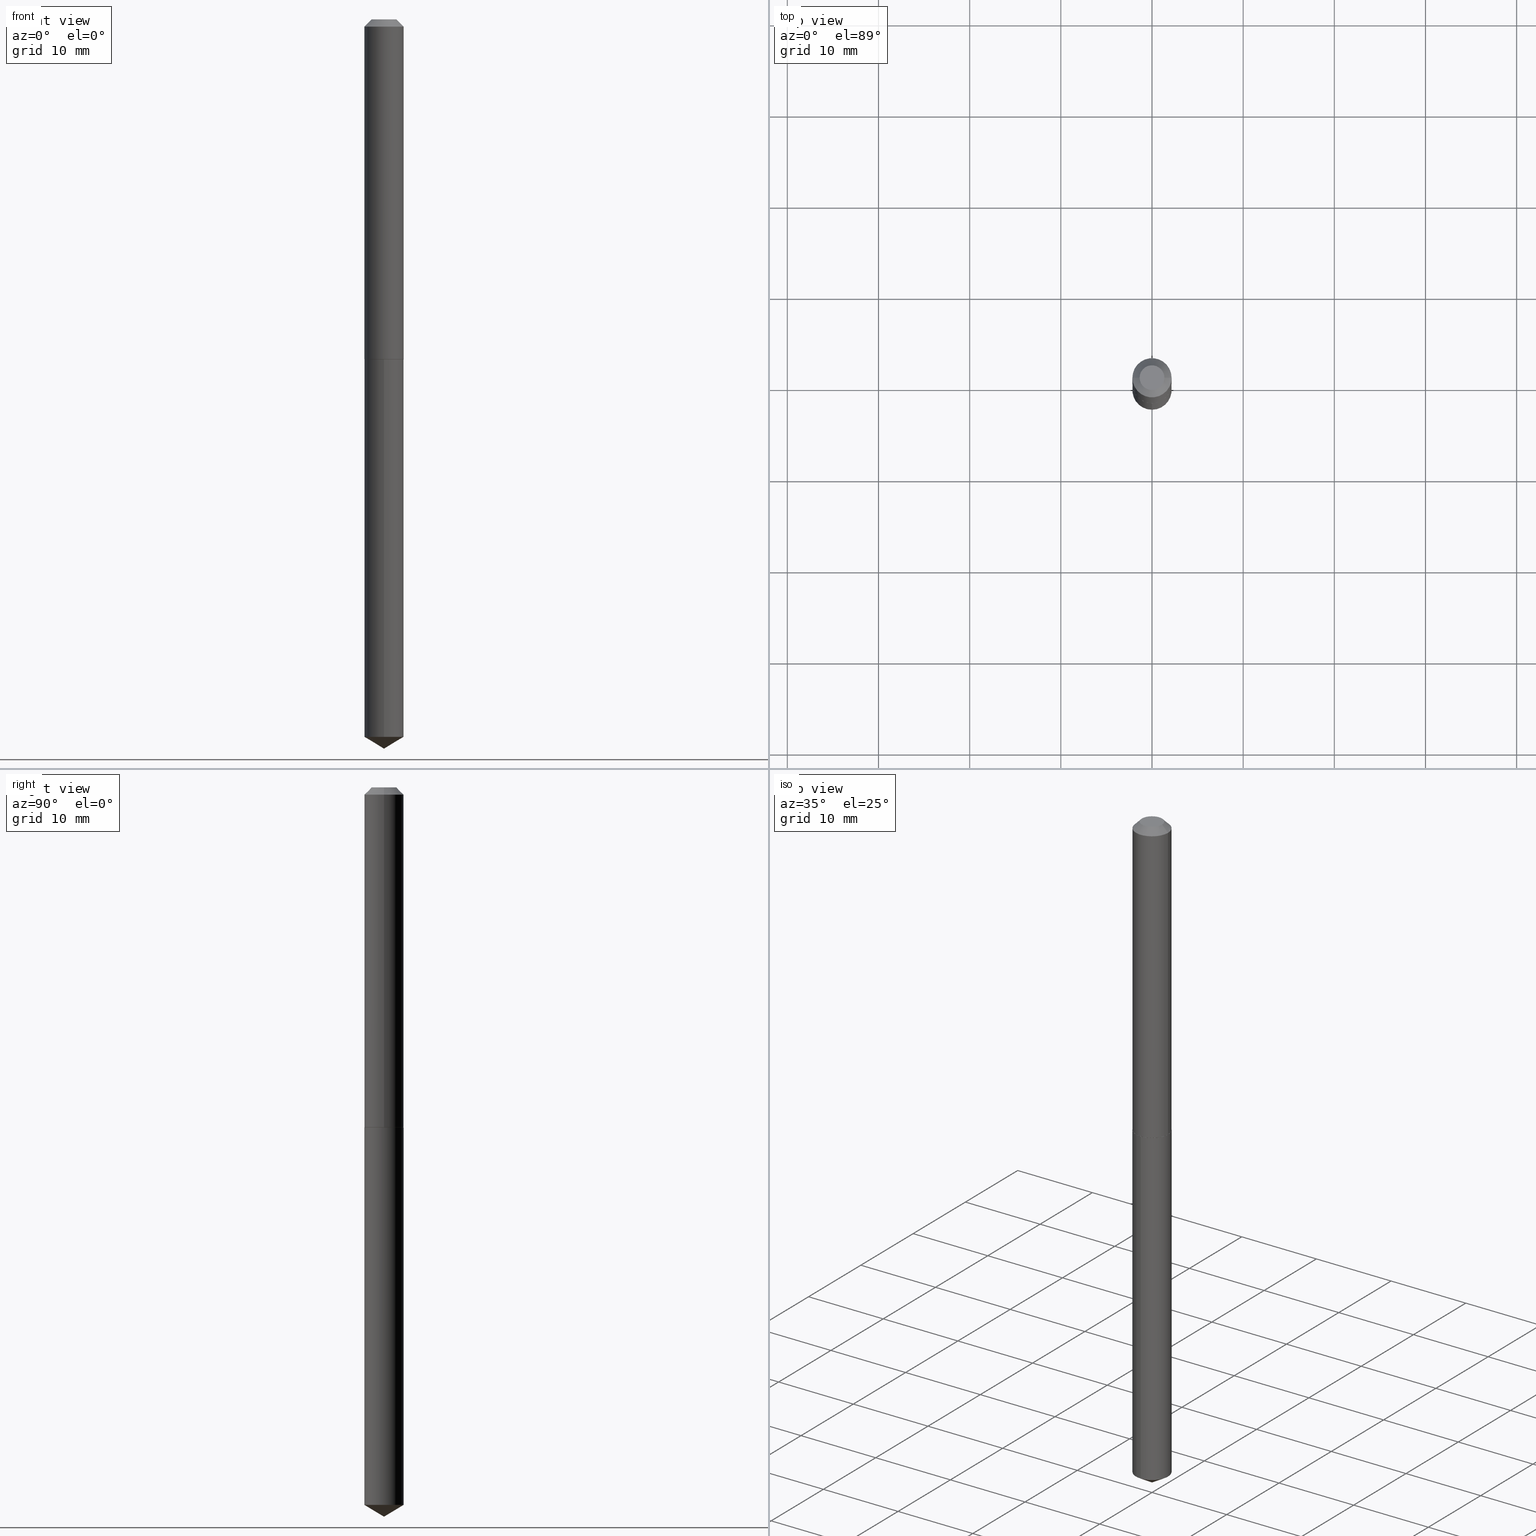
[diagram: canonical four-view strip — front | top / right | iso, engineering-drawing reading convention]
A machine part, canonical four-view strip (front | top / right | iso — engineering-drawing reading convention). The complete STEP part file that produces these views, byte-faithful:
ISO-10303-21;
HEADER;
FILE_DESCRIPTION (( 'STEP AP203' ),
    '1' );
FILE_NAME ('61078.STEP',
    '2024-04-23T03:21:39',
    ( '' ),
    ( '' ),
    'SwSTEP 2.0',
    'SolidWorks 2023',
    '' );
FILE_SCHEMA (( 'CONFIG_CONTROL_DESIGN' ));
ENDSEC;

DATA;
#1 = ORIENTED_EDGE ( 'NONE', *, *, #15, .F. ) ;
#2 = PLANE ( 'NONE',  #169 ) ;
#3 = AXIS2_PLACEMENT_3D ( 'NONE', #378, #253, #167 ) ;
#4 = DATE_AND_TIME ( #67, #155 ) ;
#5 = CC_DESIGN_PERSON_AND_ORGANIZATION_ASSIGNMENT ( #192, #147, ( #36 ) ) ;
#6 = APPROVAL_STATUS ( 'not_yet_approved' ) ;
#7 = ORIENTED_EDGE ( 'NONE', *, *, #105, .T. ) ;
#8 = VERTEX_POINT ( 'NONE', #281 ) ;
#9 = PERSON_AND_ORGANIZATION ( #268, #138 ) ;
#10 = AXIS2_PLACEMENT_3D ( 'NONE', #170, #257, #290 ) ;
#11 = ORIENTED_EDGE ( 'NONE', *, *, #216, .F. ) ;
#12 = COORDINATED_UNIVERSAL_TIME_OFFSET ( 5, 0, .BEHIND. ) ;
#13 = VERTEX_POINT ( 'NONE', #332 ) ;
#14 = EDGE_LOOP ( 'NONE', ( #115, #7, #99 ) ) ;
#15 = EDGE_CURVE ( 'NONE', #294, #35, #350, .T. ) ;
#16 = CIRCLE ( 'NONE', #326, 0.05340000000000000996 ) ;
#17 = CC_DESIGN_PERSON_AND_ORGANIZATION_ASSIGNMENT ( #371, #209, ( #104 ) ) ;
#18 = FACE_OUTER_BOUND ( 'NONE', #273, .T. ) ;
#19 = DIRECTION ( 'NONE',  ( -2.445439580246594342E-29, 3.491523192050575097E-15, 1.000000000000000000 ) ) ;
#20 = CARTESIAN_POINT ( 'NONE',  ( 6.014744258210007567E-16, 0.08464999999998920610, -3.098737148599317592 ) ) ;
#21 = EDGE_CURVE ( 'NONE', #8, #193, #362, .T. ) ;
#22 = CARTESIAN_POINT ( 'NONE',  ( 7.702156501944673603E-29, -1.099690144568249150E-14, -3.149600000000000399 ) ) ;
#23 = LINE ( 'NONE', #197, #149 ) ;
#24 = CYLINDRICAL_SURFACE ( 'NONE', #164, 0.08465000000000011404 ) ;
#25 = ADVANCED_FACE ( 'NONE', ( #219 ), #118, .T. ) ;
#26 = ORIENTED_EDGE ( 'NONE', *, *, #255, .F. ) ;
#27 = VERTEX_POINT ( 'NONE', #33 ) ;
#28 = VECTOR ( 'NONE', #289, 39.37007874015748143 ) ;
#29 = CARTESIAN_POINT ( 'NONE',  ( 3.589948207479781295E-29, -5.125494605421738793E-15, -1.468000000000000194 ) ) ;
#30 = FACE_OUTER_BOUND ( 'NONE', #221, .T. ) ;
#31 = CALENDAR_DATE ( 2024, 22, 4 ) ;
#32 = ORIENTED_EDGE ( 'NONE', *, *, #255, .T. ) ;
#33 = CARTESIAN_POINT ( 'NONE',  ( -0.08415000000000039115, -4.526669406774923587E-15, -1.468500000000000361 ) ) ;
#34 = EDGE_CURVE ( 'NONE', #81, #27, #235, .T. ) ;
#35 = VERTEX_POINT ( 'NONE', #152 ) ;
#36 = SECURITY_CLASSIFICATION ( '', '', #335 ) ;
#37 = EDGE_CURVE ( 'NONE', #141, #35, #337, .T. ) ;
#38 = CARTESIAN_POINT ( 'NONE',  ( 7.642090019328602662E-31, -1.091087918388490267E-16, -0.03125000000000020817 ) ) ;
#39 = APPROVAL_DATE_TIME ( #156, #198 ) ;
#40 = ORIENTED_EDGE ( 'NONE', *, *, #265, .T. ) ;
#41 = ORIENTED_EDGE ( 'NONE', *, *, #288, .T. ) ;
#42 = DIRECTION ( 'NONE',  ( 1.000000000000000000, -6.982962677686266711E-15, 4.876167854615105113E-29 ) ) ;
#43 = VECTOR ( 'NONE', #179, 39.37007874015748854 ) ;
#44 = DIRECTION ( 'NONE',  ( -2.445439580246594342E-29, 3.491523192050575097E-15, 1.000000000000000000 ) ) ;
#45 = DIRECTION ( 'NONE',  ( -2.445439580246594342E-29, 3.491523192050574702E-15, 1.000000000000000000 ) ) ;
#46 = FACE_OUTER_BOUND ( 'NONE', #322, .T. ) ;
#47 = DIRECTION ( 'NONE',  ( -6.982962677686265922E-15, -1.000000000000000000, 3.227227399485248397E-15 ) ) ;
#48 = VECTOR ( 'NONE', #132, 39.37007874015748854 ) ;
#49 = CARTESIAN_POINT ( 'NONE',  ( 7.642090019328602662E-31, -1.091087918388490267E-16, -0.03125000000000020817 ) ) ;
#50 = LOCAL_TIME ( 23, 21, 39.00000000000000000, #159 ) ;
#51 = CARTESIAN_POINT ( 'NONE',  ( 3.591170941882873536E-29, -5.127240346091159508E-15, -1.468500000000000139 ) ) ;
#52 = ORIENTED_EDGE ( 'NONE', *, *, #105, .F. ) ;
#53 = CC_DESIGN_APPROVAL ( #214, ( #36 ) ) ;
#54 = CARTESIAN_POINT ( 'NONE',  ( 6.014744258210009539E-16, 0.08464999999999488212, -1.468500000000000361 ) ) ;
#55 = DIRECTION ( 'NONE',  ( -2.445468806185136877E-29, 3.491481338843145188E-15, 1.000000000000000000 ) ) ;
#56 = EDGE_LOOP ( 'NONE', ( #160, #339, #359, #266 ) ) ;
#57 = DIRECTION ( 'NONE',  ( 1.000000000000000000, -6.982962677686266711E-15, 0.000000000000000000 ) ) ;
#58 = COORDINATED_UNIVERSAL_TIME_OFFSET ( 5, 0, .BEHIND. ) ;
#59 = ORIENTED_EDGE ( 'NONE', *, *, #62, .F. ) ;
#60 = CIRCLE ( 'NONE', #206, 0.08465000000000018343 ) ;
#61 = CARTESIAN_POINT ( 'NONE',  ( 0.08465000000000003078, -6.898499473502093829E-16, -0.03125000000000020817 ) ) ;
#62 = EDGE_CURVE ( 'NONE', #27, #81, #191, .T. ) ;
#63 = APPLICATION_PROTOCOL_DEFINITION ( 'international standard', 'config_control_design', 1994, #286 ) ;
#64 = ORIENTED_EDGE ( 'NONE', *, *, #285, .T. ) ;
#65 = ORIENTED_EDGE ( 'NONE', *, *, #88, .T. ) ;
#66 = AXIS2_PLACEMENT_3D ( 'NONE', #277, #303, #373 ) ;
#67 = CALENDAR_DATE ( 2024, 22, 4 ) ;
#68 = ORIENTED_EDGE ( 'NONE', *, *, #360, .F. ) ;
#69 = CC_DESIGN_DATE_AND_TIME_ASSIGNMENT ( #98, #340, ( #111 ) ) ;
#70 = DIRECTION ( 'NONE',  ( -6.982962677686265922E-15, -1.000000000000000000, 3.227227399485248397E-15 ) ) ;
#71 = CARTESIAN_POINT ( 'NONE',  ( 7.577817390255991065E-29, -1.081925115896807273E-14, -3.098737148599316704 ) ) ;
#72 = PRODUCT ( '61078', '61078', '', ( #153 ) ) ;
#73 = CC_DESIGN_SECURITY_CLASSIFICATION ( #36, ( #104 ) ) ;
#74 = AXIS2_PLACEMENT_3D ( 'NONE', #71, #194, #229 ) ;
#75 = CARTESIAN_POINT ( 'NONE',  ( 6.014744258209607220E-16, 0.08464999999999488212, -1.468500000000000361 ) ) ;
#76 = DIRECTION ( 'NONE',  ( -2.445439580246594342E-29, 3.491523192050575097E-15, 1.000000000000000000 ) ) ;
#77 = DIRECTION ( 'NONE',  ( -6.982962677686265922E-15, -1.000000000000000000, 3.227227399485248397E-15 ) ) ;
#78 = DIRECTION ( 'NONE',  ( -0.7071067811865453523, 2.468850131082234184E-15, -0.7071067811865496822 ) ) ;
#79 = CIRCLE ( 'NONE', #354, 0.08465000000000018343 ) ;
#80 = ADVANCED_FACE ( 'NONE', ( #247 ), #256, .T. ) ;
#81 = VERTEX_POINT ( 'NONE', #313 ) ;
#82 = EDGE_CURVE ( 'NONE', #180, #141, #185, .T. ) ;
#83 = DIRECTION ( 'NONE',  ( -1.000000000000000000, 6.982962677686266711E-15, 0.000000000000000000 ) ) ;
#84 = ORIENTED_EDGE ( 'NONE', *, *, #288, .F. ) ;
#85 = DIMENSIONAL_EXPONENTS ( 1.000000000000000000, 0.000000000000000000, 0.000000000000000000, 0.000000000000000000, 0.000000000000000000, 0.000000000000000000, 0.000000000000000000 ) ;
#86 = DIRECTION ( 'NONE',  ( 1.000000000000000000, -6.982962677686266711E-15, 4.876176775795935232E-29 ) ) ;
#87 = DIRECTION ( 'NONE',  ( -0.7071067811862817853, 7.493145998869393328E-15, 0.7071067811868130271 ) ) ;
#88 = EDGE_CURVE ( 'NONE', #90, #292, #345, .T. ) ;
#89 = DIRECTION ( 'NONE',  ( 1.000000000000000000, -6.982962677686266711E-15, 0.000000000000000000 ) ) ;
#90 = VERTEX_POINT ( 'NONE', #252 ) ;
#91 = CALENDAR_DATE ( 2024, 22, 4 ) ;
#92 = ORIENTED_EDGE ( 'NONE', *, *, #34, .F. ) ;
#93 = DIRECTION ( 'NONE',  ( 1.000000000000000000, -6.982962677686266711E-15, 0.000000000000000000 ) ) ;
#94 = DATE_AND_TIME ( #91, #226 ) ;
#95 = ORIENTED_EDGE ( 'NONE', *, *, #15, .T. ) ;
#96 = CALENDAR_DATE ( 2024, 22, 4 ) ;
#97 = DIRECTION ( 'NONE',  ( 0.7071067811865453523, -7.319954787623248157E-15, -0.7071067811865496822 ) ) ;
#98 = DATE_AND_TIME ( #96, #50 ) ;
#99 = ORIENTED_EDGE ( 'NONE', *, *, #21, .F. ) ;
#100 = AXIS2_PLACEMENT_3D ( 'NONE', #298, #270, #86 ) ;
#101 = DIRECTION ( 'NONE',  ( -6.982962677686265922E-15, -1.000000000000000000, 3.227227399485248397E-15 ) ) ;
#102 = PRODUCT_DEFINITION_SHAPE ( 'NONE', 'NONE',  #111 ) ;
#103 = DIRECTION ( 'NONE',  ( 1.000000000000000000, -6.982962677686266711E-15, 4.876167854615105113E-29 ) ) ;
#104 = PRODUCT_DEFINITION_FORMATION_WITH_SPECIFIED_SOURCE ( 'ANY', '', #72, .NOT_KNOWN. ) ;
#105 = EDGE_CURVE ( 'NONE', #154, #193, #23, .T. ) ;
#106 = DIRECTION ( 'NONE',  ( 1.000000000000000000, -6.982962677686265922E-15, 4.876176775795935793E-29 ) ) ;
#107 = AXIS2_PLACEMENT_3D ( 'NONE', #384, #317, #47 ) ;
#108 = CARTESIAN_POINT ( 'NONE',  ( 0.08465000000000018343, -5.716602396087882778E-15, -1.468000000000000194 ) ) ;
#109 = DIRECTION ( 'NONE',  ( 1.000000000000000000, -6.982962677686266711E-15, 0.000000000000000000 ) ) ;
#110 = FACE_OUTER_BOUND ( 'NONE', #275, .T. ) ;
#111 = PRODUCT_DEFINITION ( 'UNKNOWN', '', #104, #172 ) ;
#112 = LINE ( 'NONE', #231, #136 ) ;
#113 = CONICAL_SURFACE ( 'NONE', #318, 0.08465000000000018343, 0.7853981633970726906 ) ;
#114 = LENGTH_MEASURE_WITH_UNIT ( LENGTH_MEASURE( 0.02539999999999999897 ), #353 );
#115 = ORIENTED_EDGE ( 'NONE', *, *, #368, .F. ) ;
#116 = EDGE_CURVE ( 'NONE', #8, #90, #195, .T. ) ;
#117 = ADVANCED_FACE ( 'NONE', ( #199 ), #238, .T. ) ;
#118 = CONICAL_SURFACE ( 'NONE', #66, 0.08465000000000003078, 0.7853981633974452814 ) ;
#119 = FACE_OUTER_BOUND ( 'NONE', #249, .T. ) ;
#120 = EDGE_LOOP ( 'NONE', ( #52, #202, #215 ) ) ;
#121 = DATE_TIME_ROLE ( 'classification_date' ) ;
#122 = DIRECTION ( 'NONE',  ( -2.445468806185136597E-29, 3.491481338843145583E-15, 1.000000000000000000 ) ) ;
#123 = ORIENTED_EDGE ( 'NONE', *, *, #237, .F. ) ;
#124 = MANIFOLD_SOLID_BREP ( 'Body-Move/Copy2[2]', #325 ) ;
#125 = CONICAL_SURFACE ( 'NONE', #131, 0.08465000000000003078, 0.7853981633974452814 ) ;
#126 = APPROVAL_ROLE ( '' ) ;
#127 = DIRECTION ( 'NONE',  ( -2.445468806185136597E-29, 3.491481338843145583E-15, 1.000000000000000000 ) ) ;
#128 = CALENDAR_DATE ( 2024, 22, 4 ) ;
#129 = DIRECTION ( 'NONE',  ( -2.445439580246594342E-29, 3.491523192050575097E-15, 1.000000000000000000 ) ) ;
#130 = ORIENTED_EDGE ( 'NONE', *, *, #360, .T. ) ;
#131 = AXIS2_PLACEMENT_3D ( 'NONE', #49, #387, #83 ) ;
#132 = DIRECTION ( 'NONE',  ( 0.7071067811862817853, -2.468850131079474354E-15, 0.7071067811868130271 ) ) ;
#133 = PLANE ( 'NONE',  #158 ) ;
#134 = CARTESIAN_POINT ( 'NONE',  ( -5.839929314523221596E-48, 8.337871319499149181E-34, 2.388061258337353400E-19 ) ) ;
#135 = CLOSED_SHELL ( 'NONE', ( #245, #327, #117, #139, #297 ) ) ;
#136 = VECTOR ( 'NONE', #87, 39.37007874015748854 ) ;
#137 = FACE_OUTER_BOUND ( 'NONE', #377, .T. ) ;
#138 = ORGANIZATION ( 'UNSPECIFIED', 'UNSPECIFIED', '' ) ;
#139 = ADVANCED_FACE ( 'NONE', ( #46 ), #251, .T. ) ;
#140 = DIRECTION ( 'NONE',  ( -2.445468806185136597E-29, 3.491481338843145583E-15, 1.000000000000000000 ) ) ;
#141 = VERTEX_POINT ( 'NONE', #287 ) ;
#142 =( CONVERSION_BASED_UNIT ( 'INCH', #114 ) LENGTH_UNIT ( ) NAMED_UNIT ( #85 ) );
#143 =( GEOMETRIC_REPRESENTATION_CONTEXT ( 3 ) GLOBAL_UNCERTAINTY_ASSIGNED_CONTEXT ( ( #259 ) ) GLOBAL_UNIT_ASSIGNED_CONTEXT ( ( #142, #330, #389 ) ) REPRESENTATION_CONTEXT ( 'NONE', 'WORKASPACE' ) );
#144 = ORIENTED_EDGE ( 'NONE', *, *, #62, .T. ) ;
#145 = CC_DESIGN_APPROVAL ( #198, ( #111 ) ) ;
#146 = DIRECTION ( 'NONE',  ( 2.445439580246594342E-29, -3.491523192050574702E-15, -1.000000000000000000 ) ) ;
#147 = PERSON_AND_ORGANIZATION_ROLE ( 'classification_officer' ) ;
#148 = ORIENTED_EDGE ( 'NONE', *, *, #237, .T. ) ;
#149 = VECTOR ( 'NONE', #316, 39.37007874015748854 ) ;
#150 = EDGE_CURVE ( 'NONE', #193, #292, #225, .T. ) ;
#151 = APPROVAL_STATUS ( 'not_yet_approved' ) ;
#152 = CARTESIAN_POINT ( 'NONE',  ( 0.08465000000000003078, -7.002165825049917055E-16, -0.03125000000000020817 ) ) ;
#153 = MECHANICAL_CONTEXT ( 'NONE', #286, 'mechanical' ) ;
#154 = VERTEX_POINT ( 'NONE', #22 ) ;
#155 = LOCAL_TIME ( 23, 21, 39.00000000000000000, #58 ) ;
#156 = DATE_AND_TIME ( #31, #311 ) ;
#157 = DIRECTION ( 'NONE',  ( -2.445468806185136597E-29, 3.491481338843145583E-15, 1.000000000000000000 ) ) ;
#158 = AXIS2_PLACEMENT_3D ( 'NONE', #254, #380, #106 ) ;
#159 = COORDINATED_UNIVERSAL_TIME_OFFSET ( 5, 0, .BEHIND. ) ;
#160 = ORIENTED_EDGE ( 'NONE', *, *, #21, .T. ) ;
#161 = ORIENTED_EDGE ( 'NONE', *, *, #285, .F. ) ;
#162 = APPROVAL_PERSON_ORGANIZATION ( #220, #168, #126 ) ;
#163 = DIRECTION ( 'NONE',  ( -2.445468806185136597E-29, 3.491481338843145583E-15, 1.000000000000000000 ) ) ;
#164 = AXIS2_PLACEMENT_3D ( 'NONE', #203, #140, #232 ) ;
#165 = FACE_OUTER_BOUND ( 'NONE', #56, .T. ) ;
#166 = CARTESIAN_POINT ( 'NONE',  ( -0.05340000000000000996, 4.274446029078701372E-16, 2.388061258309370119E-19 ) ) ;
#167 = DIRECTION ( 'NONE',  ( -6.982962677686266711E-15, -1.000000000000000000, 3.468864327941613936E-15 ) ) ;
#168 = APPROVAL ( #6, 'UNSPECIFIED' ) ;
#169 = AXIS2_PLACEMENT_3D ( 'NONE', #51, #146, #355 ) ;
#170 = CARTESIAN_POINT ( 'NONE',  ( -2.919964657261610798E-48, 4.168935659749574591E-34, 1.194030629168676700E-19 ) ) ;
#171 = CARTESIAN_POINT ( 'NONE',  ( 3.589948207479781295E-29, -5.125494605421738793E-15, -1.468000000000000194 ) ) ;
#172 = DESIGN_CONTEXT ( 'detailed design', #386, 'design' ) ;
#173 = CARTESIAN_POINT ( 'NONE',  ( 3.589948207479781295E-29, -5.125494605421738793E-15, -1.468000000000000194 ) ) ;
#174 = ORIENTED_EDGE ( 'NONE', *, *, #310, .F. ) ;
#175 = EDGE_CURVE ( 'NONE', #344, #35, #223, .T. ) ;
#176 = DIRECTION ( 'NONE',  ( -2.445468806185136597E-29, 3.491481338843145583E-15, 1.000000000000000000 ) ) ;
#177 = VECTOR ( 'NONE', #230, 39.37007874015748143 ) ;
#178 = ADVANCED_BREP_SHAPE_REPRESENTATION ( '61078', ( #264, #124, #239 ), #143 ) ;
#179 = DIRECTION ( 'NONE',  ( -5.985567269335934180E-15, -0.8571673007021091140, 0.5150380749100591515 ) ) ;
#180 = VERTEX_POINT ( 'NONE', #166 ) ;
#181 = DIRECTION ( 'NONE',  ( -2.445468806185136597E-29, 3.491481338843145583E-15, 1.000000000000000000 ) ) ;
#182 = CC_DESIGN_PERSON_AND_ORGANIZATION_ASSIGNMENT ( #248, #343, ( #104 ) ) ;
#183 = SHAPE_DEFINITION_REPRESENTATION ( #102, #178 ) ;
#184 = DIRECTION ( 'NONE',  ( -6.982962677686265922E-15, -1.000000000000000000, 6.454454798970496795E-15 ) ) ;
#185 = CIRCLE ( 'NONE', #283, 0.05340000000000000996 ) ;
#186 = DIRECTION ( 'NONE',  ( 1.000000000000000000, 0.000000000000000000, 0.000000000000000000 ) ) ;
#187 = ORIENTED_EDGE ( 'NONE', *, *, #116, .T. ) ;
#188 = DIRECTION ( 'NONE',  ( 1.000000000000000000, -6.982962677686266711E-15, 0.000000000000000000 ) ) ;
#189 = AXIS2_PLACEMENT_3D ( 'NONE', #279, #129, #184 ) ;
#190 = CARTESIAN_POINT ( 'NONE',  ( 3.591170941882874097E-29, -5.127240346091160296E-15, -1.468500000000000361 ) ) ;
#191 = CIRCLE ( 'NONE', #309, 0.08415000000000039115 ) ;
#192 = PERSON_AND_ORGANIZATION ( #268, #138 ) ;
#193 = VERTEX_POINT ( 'NONE', #20 ) ;
#194 = DIRECTION ( 'NONE',  ( -2.445439580246594342E-29, 3.491523192050575097E-15, 1.000000000000000000 ) ) ;
#195 = LINE ( 'NONE', #379, #244 ) ;
#196 = CARTESIAN_POINT ( 'NONE',  ( -5.839929314523221596E-48, 8.337871319499149181E-34, 2.388061258337353400E-19 ) ) ;
#197 = CARTESIAN_POINT ( 'NONE',  ( 7.702243091211669364E-29, -1.099677852281227163E-14, -3.149600000000000399 ) ) ;
#198 = APPROVAL ( #151, 'UNSPECIFIED' ) ;
#199 = FACE_OUTER_BOUND ( 'NONE', #120, .T. ) ;
#200 = AXIS2_PLACEMENT_3D ( 'NONE', #348, #44, #70 ) ;
#201 = CARTESIAN_POINT ( 'NONE',  ( 0.08465000000000018343, -5.716602396087882778E-15, -1.468000000000000194 ) ) ;
#202 = ORIENTED_EDGE ( 'NONE', *, *, #368, .T. ) ;
#203 = CARTESIAN_POINT ( 'NONE',  ( 0.000000000000000000, 0.000000000000000000, 0.000000000000000000 ) ) ;
#204 = EDGE_LOOP ( 'NONE', ( #243, #306, #40, #95 ) ) ;
#205 = FACE_OUTER_BOUND ( 'NONE', #14, .T. ) ;
#206 = AXIS2_PLACEMENT_3D ( 'NONE', #173, #181, #328 ) ;
#207 = ORIENTED_EDGE ( 'NONE', *, *, #34, .T. ) ;
#208 = ADVANCED_FACE ( 'NONE', ( #137 ), #352, .F. ) ;
#209 = PERSON_AND_ORGANIZATION_ROLE ( 'design_supplier' ) ;
#210 = ORIENTED_EDGE ( 'NONE', *, *, #150, .F. ) ;
#211 = DATE_AND_TIME ( #128, #300 ) ;
#212 = DIRECTION ( 'NONE',  ( 1.000000000000000000, -6.982962677686266711E-15, 0.000000000000000000 ) ) ;
#213 = VECTOR ( 'NONE', #97, 39.37007874015748143 ) ;
#214 = APPROVAL ( #241, 'UNSPECIFIED' ) ;
#215 = ORIENTED_EDGE ( 'NONE', *, *, #224, .F. ) ;
#216 = EDGE_CURVE ( 'NONE', #292, #90, #319, .T. ) ;
#217 = COORDINATED_UNIVERSAL_TIME_OFFSET ( 5, 0, .BEHIND. ) ;
#218 = CC_DESIGN_APPROVAL ( #168, ( #104 ) ) ;
#219 = FACE_OUTER_BOUND ( 'NONE', #204, .T. ) ;
#220 = PERSON_AND_ORGANIZATION ( #268, #138 ) ;
#221 = EDGE_LOOP ( 'NONE', ( #367, #312, #68, #365 ) ) ;
#222 = VECTOR ( 'NONE', #55, 39.37007874015748143 ) ;
#223 = LINE ( 'NONE', #315, #177 ) ;
#224 = EDGE_CURVE ( 'NONE', #193, #8, #228, .T. ) ;
#225 = LINE ( 'NONE', #75, #28 ) ;
#226 = LOCAL_TIME ( 23, 21, 39.00000000000000000, #274 ) ;
#227 = LINE ( 'NONE', #382, #383 ) ;
#228 = CIRCLE ( 'NONE', #74, 0.08465000000000001690 ) ;
#229 = DIRECTION ( 'NONE',  ( -6.982962677686265922E-15, -1.000000000000000000, 6.454454798970496795E-15 ) ) ;
#230 = DIRECTION ( 'NONE',  ( -2.445468806185136877E-29, 3.491481338843145188E-15, 1.000000000000000000 ) ) ;
#231 = CARTESIAN_POINT ( 'NONE',  ( -0.08465000000000018343, -4.524020179600813175E-15, -1.468000000000000194 ) ) ;
#232 = DIRECTION ( 'NONE',  ( 1.000000000000000000, -6.982962677686266711E-15, 4.876176775795935232E-29 ) ) ;
#233 = ORIENTED_EDGE ( 'NONE', *, *, #37, .T. ) ;
#234 = CARTESIAN_POINT ( 'NONE',  ( -8.857494940837065754E-28, 1.264647030098697642E-13, 36.22047874015748192 ) ) ;
#235 = CIRCLE ( 'NONE', #342, 0.08415000000000039115 ) ;
#236 = DIRECTION ( 'NONE',  ( -2.445439580246594342E-29, 3.491523192050575097E-15, 1.000000000000000000 ) ) ;
#237 = EDGE_CURVE ( 'NONE', #81, #344, #314, .T. ) ;
#238 = CONICAL_SURFACE ( 'NONE', #3, 65.52281426576806211, 1.029744258676652091 ) ;
#239 = AXIS2_PLACEMENT_3D ( 'NONE', #369, #376, #186 ) ;
#240 = PERSON_AND_ORGANIZATION ( #268, #138 ) ;
#241 = APPROVAL_STATUS ( 'not_yet_approved' ) ;
#242 = CARTESIAN_POINT ( 'NONE',  ( 3.591170941882874097E-29, -5.127240346091160296E-15, -1.468500000000000361 ) ) ;
#243 = ORIENTED_EDGE ( 'NONE', *, *, #37, .F. ) ;
#244 = VECTOR ( 'NONE', #45, 39.37007874015748143 ) ;
#245 = ADVANCED_FACE ( 'NONE', ( #165 ), #284, .T. ) ;
#246 = APPROVAL_DATE_TIME ( #211, #168 ) ;
#247 = FACE_OUTER_BOUND ( 'NONE', #375, .T. ) ;
#248 = PERSON_AND_ORGANIZATION ( #268, #138 ) ;
#249 = EDGE_LOOP ( 'NONE', ( #207, #41, #267, #123 ) ) ;
#250 = CC_DESIGN_DATE_AND_TIME_ASSIGNMENT ( #4, #121, ( #36 ) ) ;
#251 = CYLINDRICAL_SURFACE ( 'NONE', #107, 0.08465000000000001690 ) ;
#252 = CARTESIAN_POINT ( 'NONE',  ( -5.911077906661066131E-16, -0.08465000000000513780, -1.468499999999999917 ) ) ;
#253 = DIRECTION ( 'NONE',  ( -2.445439580246594342E-29, 3.491523192050575097E-15, 1.000000000000000000 ) ) ;
#254 = CARTESIAN_POINT ( 'NONE',  ( 3.591170941882874097E-29, -5.127240346091160296E-15, -1.468500000000000361 ) ) ;
#255 = EDGE_CURVE ( 'NONE', #141, #180, #16, .T. ) ;
#256 = CONICAL_SURFACE ( 'NONE', #372, 0.08465000000000018343, 0.7853981633970726906 ) ;
#257 = DIRECTION ( 'NONE',  ( 2.438088387897960049E-29, -3.491481338843145188E-15, -1.000000000000000000 ) ) ;
#258 = APPROVAL_PERSON_ORGANIZATION ( #9, #198, #278 ) ;
#259 = UNCERTAINTY_MEASURE_WITH_UNIT (LENGTH_MEASURE( 1.000000000000000082E-05 ), #142, 'distance_accuracy_value', 'NONE');
#260 = LINE ( 'NONE', #320, #222 ) ;
#261 = ADVANCED_FACE ( 'NONE', ( #18 ), #133, .F. ) ;
#262 = LINE ( 'NONE', #358, #43 ) ;
#263 = APPROVAL_PERSON_ORGANIZATION ( #240, #214, #366 ) ;
#264 = MANIFOLD_SOLID_BREP ( 'Body-Move/Copy2[1]', #135 ) ;
#265 = EDGE_CURVE ( 'NONE', #180, #294, #227, .T. ) ;
#266 = ORIENTED_EDGE ( 'NONE', *, *, #116, .F. ) ;
#267 = ORIENTED_EDGE ( 'NONE', *, *, #349, .F. ) ;
#268 = PERSON ( 'UNSPECIFIED', 'UNSPECIFIED', 'UNSPECIFIED', ('UNSPECIFIED'), ('UNSPECIFIED'), ('UNSPECIFIED') ) ;
#269 = ADVANCED_FACE ( 'NONE', ( #110 ), #125, .T. ) ;
#270 = DIRECTION ( 'NONE',  ( -2.445468806185136597E-29, 3.491481338843145583E-15, 1.000000000000000000 ) ) ;
#271 = AXIS2_PLACEMENT_3D ( 'NONE', #234, #236, #385 ) ;
#272 = PERSON_AND_ORGANIZATION ( #268, #138 ) ;
#273 = EDGE_LOOP ( 'NONE', ( #92, #59 ) ) ;
#274 = COORDINATED_UNIVERSAL_TIME_OFFSET ( 5, 0, .BEHIND. ) ;
#275 = EDGE_LOOP ( 'NONE', ( #26, #233, #130, #356 ) ) ;
#276 = PERSON_AND_ORGANIZATION_ROLE ( 'design_owner' ) ;
#277 = CARTESIAN_POINT ( 'NONE',  ( 7.642090019328602662E-31, -1.091087918388490267E-16, -0.03125000000000020817 ) ) ;
#278 = APPROVAL_ROLE ( '' ) ;
#279 = CARTESIAN_POINT ( 'NONE',  ( 7.577817390255991065E-29, -1.081925115896807273E-14, -3.098737148599316704 ) ) ;
#280 = CC_DESIGN_PERSON_AND_ORGANIZATION_ASSIGNMENT ( #374, #276, ( #72 ) ) ;
#281 = CARTESIAN_POINT ( 'NONE',  ( -5.911077906660666770E-16, -0.08465000000001084157, -3.098737148599316260 ) ) ;
#282 = CARTESIAN_POINT ( 'NONE',  ( 3.591170941882873536E-29, -5.127240346091159508E-15, -1.468500000000000139 ) ) ;
#283 = AXIS2_PLACEMENT_3D ( 'NONE', #196, #163, #103 ) ;
#284 = CYLINDRICAL_SURFACE ( 'NONE', #363, 0.08465000000000001690 ) ;
#285 = EDGE_CURVE ( 'NONE', #13, #344, #60, .T. ) ;
#286 = APPLICATION_CONTEXT ( 'configuration controlled 3d designs of mechanical parts and assemblies' ) ;
#287 = CARTESIAN_POINT ( 'NONE',  ( 0.05340000000000000996, -5.281002702156046519E-16, 2.388061258368850539E-19 ) ) ;
#288 = EDGE_CURVE ( 'NONE', #27, #13, #112, .T. ) ;
#289 = DIRECTION ( 'NONE',  ( -2.445439580246594342E-29, 3.491523192050574702E-15, 1.000000000000000000 ) ) ;
#290 = DIRECTION ( 'NONE',  ( -1.000000000000000000, 6.982962677686265922E-15, -4.876176775795935793E-29 ) ) ;
#291 = FACE_OUTER_BOUND ( 'NONE', #329, .T. ) ;
#292 = VERTEX_POINT ( 'NONE', #54 ) ;
#293 = FACE_OUTER_BOUND ( 'NONE', #324, .T. ) ;
#294 = VERTEX_POINT ( 'NONE', #323 ) ;
#295 = AXIS2_PLACEMENT_3D ( 'NONE', #351, #76, #77 ) ;
#296 = CARTESIAN_POINT ( 'NONE',  ( 7.642090019328602662E-31, -1.091087918388490267E-16, -0.03125000000000020817 ) ) ;
#297 = ADVANCED_FACE ( 'NONE', ( #291 ), #2, .F. ) ;
#298 = CARTESIAN_POINT ( 'NONE',  ( 0.000000000000000000, 0.000000000000000000, 0.000000000000000000 ) ) ;
#299 = ORIENTED_EDGE ( 'NONE', *, *, #224, .T. ) ;
#300 = LOCAL_TIME ( 23, 21, 39.00000000000000000, #12 ) ;
#301 = DIRECTION ( 'NONE',  ( 1.000000000000000000, -6.982962677686266711E-15, 0.000000000000000000 ) ) ;
#302 = CONICAL_SURFACE ( 'NONE', #271, 65.52281426576806211, 1.029744258676652091 ) ;
#303 = DIRECTION ( 'NONE',  ( 2.445468806185136597E-29, -3.491481338843145583E-15, -1.000000000000000000 ) ) ;
#304 = PERSON_AND_ORGANIZATION_ROLE ( 'creator' ) ;
#305 = PRODUCT_RELATED_PRODUCT_CATEGORY ( 'detail', '', ( #72 ) ) ;
#306 = ORIENTED_EDGE ( 'NONE', *, *, #82, .F. ) ;
#307 = ORIENTED_EDGE ( 'NONE', *, *, #216, .T. ) ;
#308 = DIRECTION ( 'NONE',  ( -2.445468806185136597E-29, 3.491481338843145583E-15, 1.000000000000000000 ) ) ;
#309 = AXIS2_PLACEMENT_3D ( 'NONE', #190, #127, #188 ) ;
#310 = EDGE_CURVE ( 'NONE', #13, #294, #260, .T. ) ;
#311 = LOCAL_TIME ( 23, 21, 39.00000000000000000, #217 ) ;
#312 = ORIENTED_EDGE ( 'NONE', *, *, #310, .T. ) ;
#313 = CARTESIAN_POINT ( 'NONE',  ( 0.08415000000000039115, -5.714856655418462852E-15, -1.468500000000000361 ) ) ;
#314 = LINE ( 'NONE', #108, #48 ) ;
#315 = CARTESIAN_POINT ( 'NONE',  ( 0.08465000000000011404, -5.911077906661432951E-16, 4.127683640711264817E-30 ) ) ;
#316 = DIRECTION ( 'NONE',  ( 6.090539988449770547E-15, 0.8571673007021127777, 0.5150380749100531563 ) ) ;
#317 = DIRECTION ( 'NONE',  ( -2.445439580246594342E-29, 3.491523192050575097E-15, 1.000000000000000000 ) ) ;
#318 = AXIS2_PLACEMENT_3D ( 'NONE', #171, #176, #57 ) ;
#319 = CIRCLE ( 'NONE', #200, 0.08465000000000001690 ) ;
#320 = CARTESIAN_POINT ( 'NONE',  ( -0.08465000000000011404, 6.014744258209256177E-16, -4.163878553900783461E-30 ) ) ;
#321 = DIRECTION ( 'NONE',  ( -2.445468806185136597E-29, 3.491481338843145583E-15, 1.000000000000000000 ) ) ;
#322 = EDGE_LOOP ( 'NONE', ( #210, #299, #187, #11 ) ) ;
#323 = CARTESIAN_POINT ( 'NONE',  ( -0.08465000000000003078, -2.015827272809367540E-15, -0.03125000000000020817 ) ) ;
#324 = EDGE_LOOP ( 'NONE', ( #174, #64, #370, #1 ) ) ;
#325 = CLOSED_SHELL ( 'NONE', ( #269, #357, #334, #261, #80, #333, #25, #208 ) ) ;
#326 = AXIS2_PLACEMENT_3D ( 'NONE', #134, #346, #42 ) ;
#327 = ADVANCED_FACE ( 'NONE', ( #205 ), #302, .T. ) ;
#328 = DIRECTION ( 'NONE',  ( 1.000000000000000000, -6.982962677686266711E-15, 0.000000000000000000 ) ) ;
#329 = EDGE_LOOP ( 'NONE', ( #65, #307 ) ) ;
#330 =( NAMED_UNIT ( * ) PLANE_ANGLE_UNIT ( ) SI_UNIT ( $, .RADIAN. ) );
#331 = APPROVAL_DATE_TIME ( #94, #214 ) ;
#332 = CARTESIAN_POINT ( 'NONE',  ( -0.08465000000000018343, -4.524020179600813175E-15, -1.468000000000000194 ) ) ;
#333 = ADVANCED_FACE ( 'NONE', ( #293 ), #361, .T. ) ;
#334 = ADVANCED_FACE ( 'NONE', ( #119 ), #113, .T. ) ;
#335 = SECURITY_CLASSIFICATION_LEVEL ( 'unclassified' ) ;
#336 = CIRCLE ( 'NONE', #388, 0.08465000000000003078 ) ;
#337 = LINE ( 'NONE', #61, #213 ) ;
#338 = APPLICATION_PROTOCOL_DEFINITION ( 'international standard', 'config_control_design', 1994, #386 ) ;
#339 = ORIENTED_EDGE ( 'NONE', *, *, #150, .T. ) ;
#340 = DATE_TIME_ROLE ( 'creation_date' ) ;
#341 = CARTESIAN_POINT ( 'NONE',  ( 3.589948207479781295E-29, -5.125494605421738793E-15, -1.468000000000000194 ) ) ;
#342 = AXIS2_PLACEMENT_3D ( 'NONE', #242, #157, #93 ) ;
#343 = PERSON_AND_ORGANIZATION_ROLE ( 'creator' ) ;
#344 = VERTEX_POINT ( 'NONE', #201 ) ;
#345 = CIRCLE ( 'NONE', #295, 0.08465000000000001690 ) ;
#346 = DIRECTION ( 'NONE',  ( -2.445468806185136597E-29, 3.491481338843145583E-15, 1.000000000000000000 ) ) ;
#347 = CC_DESIGN_PERSON_AND_ORGANIZATION_ASSIGNMENT ( #272, #304, ( #111 ) ) ;
#348 = CARTESIAN_POINT ( 'NONE',  ( 3.591170941882873536E-29, -5.127240346091159508E-15, -1.468500000000000139 ) ) ;
#349 = EDGE_CURVE ( 'NONE', #344, #13, #79, .T. ) ;
#350 = CIRCLE ( 'NONE', #381, 0.08465000000000003078 ) ;
#351 = CARTESIAN_POINT ( 'NONE',  ( 3.591170941882873536E-29, -5.127240346091159508E-15, -1.468500000000000139 ) ) ;
#352 = PLANE ( 'NONE',  #10 ) ;
#353 =( LENGTH_UNIT ( ) NAMED_UNIT ( * ) SI_UNIT ( $, .METRE. ) );
#354 = AXIS2_PLACEMENT_3D ( 'NONE', #29, #364, #301 ) ;
#355 = DIRECTION ( 'NONE',  ( 6.982962677686265922E-15, 1.000000000000000000, -3.491523192050574702E-15 ) ) ;
#356 = ORIENTED_EDGE ( 'NONE', *, *, #265, .F. ) ;
#357 = ADVANCED_FACE ( 'NONE', ( #30 ), #24, .T. ) ;
#358 = CARTESIAN_POINT ( 'NONE',  ( 7.702156501944673603E-29, -1.099690144568249150E-14, -3.149600000000000399 ) ) ;
#359 = ORIENTED_EDGE ( 'NONE', *, *, #88, .F. ) ;
#360 = EDGE_CURVE ( 'NONE', #35, #294, #336, .T. ) ;
#361 = CYLINDRICAL_SURFACE ( 'NONE', #100, 0.08465000000000011404 ) ;
#362 = CIRCLE ( 'NONE', #189, 0.08465000000000001690 ) ;
#363 = AXIS2_PLACEMENT_3D ( 'NONE', #282, #19, #101 ) ;
#364 = DIRECTION ( 'NONE',  ( -2.445468806185136597E-29, 3.491481338843145583E-15, 1.000000000000000000 ) ) ;
#365 = ORIENTED_EDGE ( 'NONE', *, *, #175, .F. ) ;
#366 = APPROVAL_ROLE ( '' ) ;
#367 = ORIENTED_EDGE ( 'NONE', *, *, #349, .T. ) ;
#368 = EDGE_CURVE ( 'NONE', #154, #8, #262, .T. ) ;
#369 = CARTESIAN_POINT ( 'NONE',  ( 0.000000000000000000, 0.000000000000000000, 0.000000000000000000 ) ) ;
#370 = ORIENTED_EDGE ( 'NONE', *, *, #175, .T. ) ;
#371 = PERSON_AND_ORGANIZATION ( #268, #138 ) ;
#372 = AXIS2_PLACEMENT_3D ( 'NONE', #341, #308, #109 ) ;
#373 = DIRECTION ( 'NONE',  ( -1.000000000000000000, 6.982962677686266711E-15, 0.000000000000000000 ) ) ;
#374 = PERSON_AND_ORGANIZATION ( #268, #138 ) ;
#375 = EDGE_LOOP ( 'NONE', ( #84, #144, #148, #161 ) ) ;
#376 = DIRECTION ( 'NONE',  ( 0.000000000000000000, 0.000000000000000000, 1.000000000000000000 ) ) ;
#377 = EDGE_LOOP ( 'NONE', ( #390, #32 ) ) ;
#378 = CARTESIAN_POINT ( 'NONE',  ( -8.857494940837065754E-28, 1.264647030098697642E-13, 36.22047874015748192 ) ) ;
#379 = CARTESIAN_POINT ( 'NONE',  ( -5.911077906661066131E-16, -0.08465000000000513780, -1.468499999999999917 ) ) ;
#380 = DIRECTION ( 'NONE',  ( -2.438088387897960049E-29, 3.491481338843145188E-15, 1.000000000000000000 ) ) ;
#381 = AXIS2_PLACEMENT_3D ( 'NONE', #38, #122, #212 ) ;
#382 = CARTESIAN_POINT ( 'NONE',  ( -0.08465000000000003078, 4.819989988272936028E-16, -0.03125000000000020817 ) ) ;
#383 = VECTOR ( 'NONE', #78, 39.37007874015748143 ) ;
#384 = CARTESIAN_POINT ( 'NONE',  ( 3.591170941882873536E-29, -5.127240346091159508E-15, -1.468500000000000139 ) ) ;
#385 = DIRECTION ( 'NONE',  ( -6.982962677686266711E-15, -1.000000000000000000, 3.468864327941613936E-15 ) ) ;
#386 = APPLICATION_CONTEXT ( 'configuration controlled 3d designs of mechanical parts and assemblies' ) ;
#387 = DIRECTION ( 'NONE',  ( 2.445468806185136597E-29, -3.491481338843145583E-15, -1.000000000000000000 ) ) ;
#388 = AXIS2_PLACEMENT_3D ( 'NONE', #296, #321, #89 ) ;
#389 =( NAMED_UNIT ( * ) SI_UNIT ( $, .STERADIAN. ) SOLID_ANGLE_UNIT ( ) );
#390 = ORIENTED_EDGE ( 'NONE', *, *, #82, .T. ) ;
ENDSEC;
END-ISO-10303-21;
